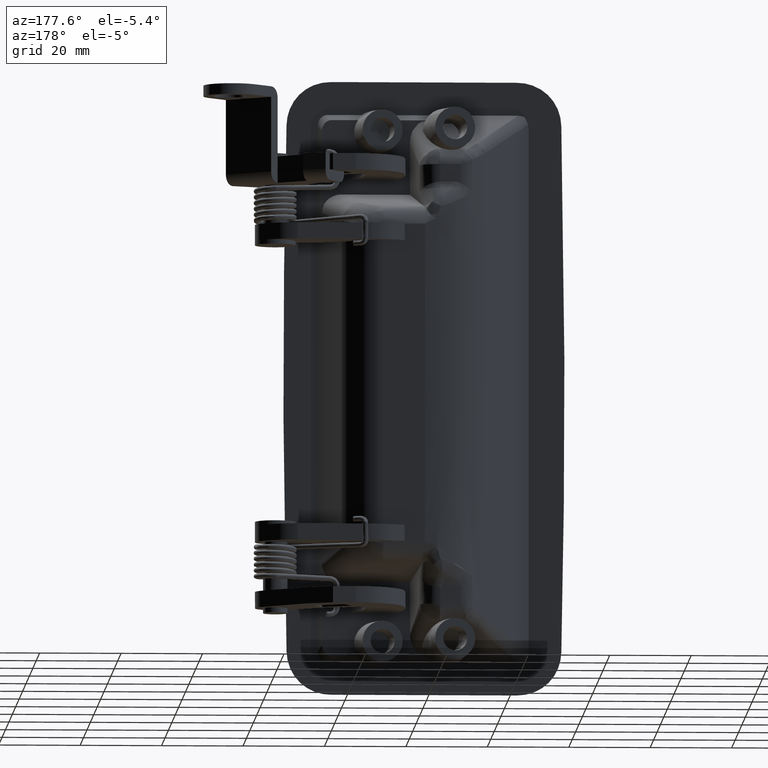
[diagram: clean part render]
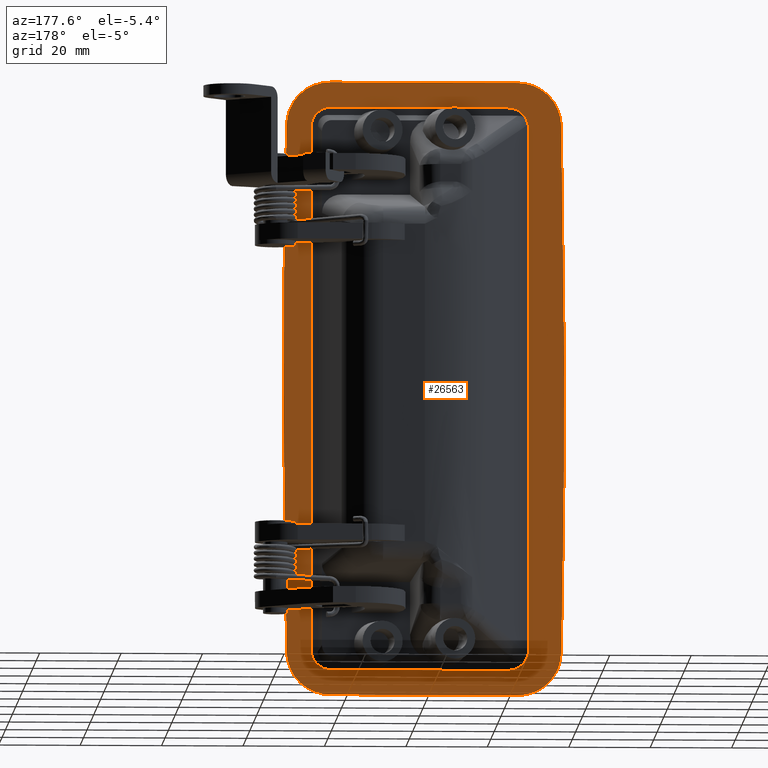
[diagram: same view with one face highlighted and labeled with its STEP entity id]
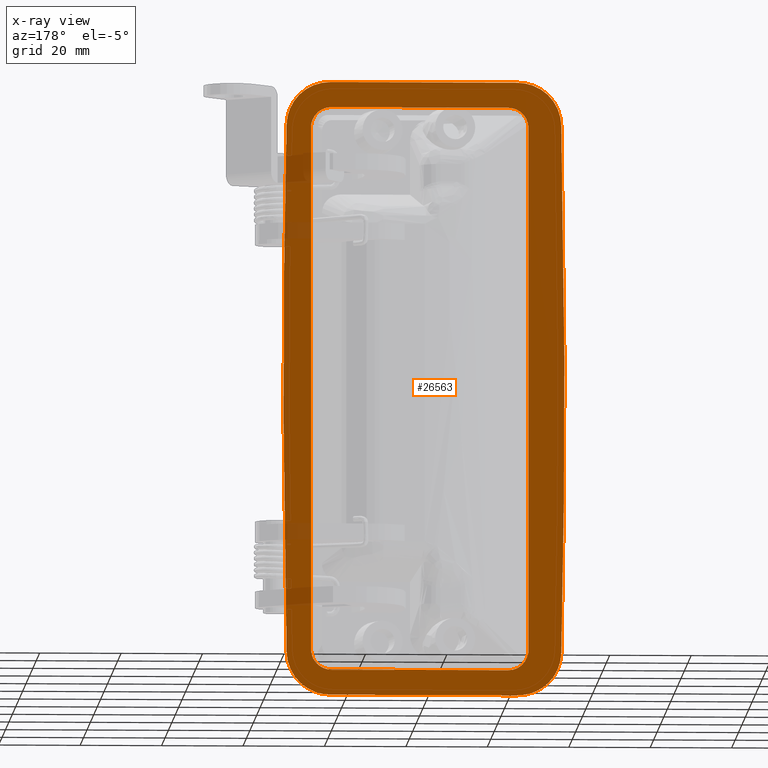
[diagram: x-ray of the same camera — body ghosted, the highlighted face saturated]
A machine part, auxiliary view. The second image highlights one B-rep face of the part: STEP entity #26563.
The next image is the same camera in x-ray: the body ghosted, the highlighted face saturated — about 4% of this face is hidden behind the body in this view.
In plain terms, the highlighted face is a freeform B-spline surface patch.
Its self-contained STEP definition (entity closure, byte-faithful):
#26063=CARTESIAN_POINT('',(-22.829069437363401,5.814100009536743,-75.500000000000000));
#26064=VERTEX_POINT('',#26063);
#26065=CARTESIAN_POINT('',(-33.745211957346513,5.814100009536743,-64.835173267199096));
#26066=VERTEX_POINT('',#26065);
#26067=CARTESIAN_POINT('',(-22.829069437363401,5.814100009536743,-75.500000000000000));
#26068=CARTESIAN_POINT('',(-23.541526736571829,5.814100009536743,-75.499999999999886));
#26069=CARTESIAN_POINT('',(-24.243614192699340,5.814100009536744,-75.436763561993899));
#26070=CARTESIAN_POINT('',(-25.281017998406650,5.814100009536742,-75.246001629750779));
#26071=CARTESIAN_POINT('',(-25.624183192660340,5.814100009536743,-75.166339249329894));
#26072=CARTESIAN_POINT('',(-26.134807661815628,5.814100009536741,-75.021701208503629));
#26073=CARTESIAN_POINT('',(-26.304327493175279,5.814100009536742,-74.969291046891144));
#26074=CARTESIAN_POINT('',(-26.557542501887198,5.814100009536743,-74.884182913623803));
#26075=CARTESIAN_POINT('',(-26.641682429191299,5.814100009536741,-74.854756852605888));
#26076=CARTESIAN_POINT('',(-26.808685075642568,5.814100009536741,-74.794056343016194));
#26077=CARTESIAN_POINT('',(-26.891655022079551,5.814100009536742,-74.762746354508081));
#26078=CARTESIAN_POINT('',(-27.303863256752521,5.814100009536741,-74.601425533242889));
#26079=CARTESIAN_POINT('',(-27.946523310175579,5.814100009536744,-74.312837225901575));
#26080=CARTESIAN_POINT('',(-28.555694174505270,5.814100009536740,-73.963763205805478));
#26081=CARTESIAN_POINT('',(-29.147828195811890,5.814100009536744,-73.583918491606681));
#26082=CARTESIAN_POINT('',(-29.435379014570579,5.814100009536745,-73.378614814426157));
#26083=CARTESIAN_POINT('',(-29.783703341449289,5.814100009536740,-73.101911572711231));
#26084=CARTESIAN_POINT('',(-29.852890343826221,5.814100009536741,-73.045495609401243));
#26085=CARTESIAN_POINT('',(-29.989371170329701,5.814100009536740,-72.931272442262141));
#26086=CARTESIAN_POINT('',(-30.191484141327312,5.814100009536742,-72.757676017311837));
#26087=CARTESIAN_POINT('',(-30.385858674865631,5.814100009536742,-72.577369461505270));
#26088=CARTESIAN_POINT('',(-30.764453427964948,5.814100009536741,-72.207951371380332));
#26089=CARTESIAN_POINT('',(-31.242210462316120,5.814100009536743,-71.691950568236024));
#26090=CARTESIAN_POINT('',(-31.666573069511461,5.814100009536741,-71.129650548344500));
#26091=CARTESIAN_POINT('',(-31.964566707418101,5.814100009536742,-70.690341859122313));
#26092=CARTESIAN_POINT('',(-32.060512924101687,5.814100009536740,-70.540970441767129));
#26093=CARTESIAN_POINT('',(-32.245526370740549,5.814100009536742,-70.236262720560148));
#26094=CARTESIAN_POINT('',(-32.333956421947882,5.814100009536745,-70.081962021945827));
#26095=CARTESIAN_POINT('',(-32.586675286871369,5.814100009536741,-69.614504211352298));
#26096=CARTESIAN_POINT('',(-32.738720456295447,5.814100009536744,-69.296307782639587));
#26097=CARTESIAN_POINT('',(-33.011129845379898,5.814100009536741,-68.647272890614474));
#26098=CARTESIAN_POINT('',(-33.131490832009582,5.814100009536743,-68.316433137186607));
#26099=CARTESIAN_POINT('',(-33.288542611881041,5.814100009536742,-67.810800126408338));
#26100=CARTESIAN_POINT('',(-33.336972184497917,5.814100009536742,-67.640691136926336));
#26101=CARTESIAN_POINT('',(-33.403715286822973,5.814100009536745,-67.383172802527511));
#26102=CARTESIAN_POINT('',(-33.424979070037253,5.814100009536744,-67.296940733139934));
#26103=CARTESIAN_POINT('',(-33.465530961226413,5.814100009536742,-67.123688216651402));
#26104=CARTESIAN_POINT('',(-33.484826326115709,5.814100009536743,-67.036622867929211));
#26105=CARTESIAN_POINT('',(-33.575990347305783,5.814100009536743,-66.601071084912505));
#26106=CARTESIAN_POINT('',(-33.632278932575879,5.814100009536745,-66.250612228585297));
#26107=CARTESIAN_POINT('',(-33.712743083779607,5.814100009536744,-65.545801756235406));
#26108=CARTESIAN_POINT('',(-33.736915544270090,5.814100009536745,-65.191449763769128));
#26109=CARTESIAN_POINT('',(-33.745211957347102,5.814100009536743,-64.835173267199210));
#26110=B_SPLINE_CURVE_WITH_KNOTS('',3,(#26067,#26068,#26069,#26070,#26071,#26072,#26073,#26074,#26075,#26076,#26077,#26078,#26079,#26080,#26081,#26082,#26083,#26084,#26085,#26086,#26087,#26088,#26089,#26090,#26091,#26092,#26093,#26094,#26095,#26096,#26097,#26098,#26099,#26100,#26101,#26102,#26103,#26104,#26105,#26106,#26107,#26108,#26109),.UNSPECIFIED.,.F.,.U.,(4,2,2,2,2,2,1,2,2,2,1,2,1,2,2,2,2,2,2,2,2,2,4),(0.0,0.124999999999989,0.187499999999984,0.218749999999982,0.234374999999981,0.249999999999980,0.312499999999976,0.374999999999971,0.437499999999967,0.453124999999967,0.468749999999967,0.499999999999970,0.562499999999975,0.624999999999979,0.656249999999983,0.687499999999987,0.749999999999992,0.812499999999997,0.843750000000000,0.859375000000001,0.875000000000002,0.937500000000001,1.0),.UNSPECIFIED.);
#26111=EDGE_CURVE('',#26064,#26066,#26110,.T.);
#26142=CARTESIAN_POINT('',(22.829069437363401,5.814100009536743,-75.500000000000000));
#26143=VERTEX_POINT('',#26142);
#26149=CARTESIAN_POINT('',(33.745211957346513,5.814100009536743,-64.835173267199295));
#26150=VERTEX_POINT('',#26149);
#26151=CARTESIAN_POINT('',(33.745211957346513,5.814100009536743,-64.835173267199295));
#26152=CARTESIAN_POINT('',(33.728625849427701,5.814100009537252,-65.547437756251497));
#26153=CARTESIAN_POINT('',(33.649058501073817,5.814100009536742,-66.247862235484220));
#26154=CARTESIAN_POINT('',(33.434190454967663,5.814100009536743,-67.280542456663767));
#26155=CARTESIAN_POINT('',(33.346558094406269,5.814100009536741,-67.621759495284621));
#26156=CARTESIAN_POINT('',(33.190067626542103,5.814100009536740,-68.128877355180791));
#26157=CARTESIAN_POINT('',(33.133723773063970,5.814100009536741,-68.297130764101979));
#26158=CARTESIAN_POINT('',(33.042741603505981,5.814100009536743,-68.548295243863890));
#26159=CARTESIAN_POINT('',(33.011364057315980,5.814100009536743,-68.631726924596762));
#26160=CARTESIAN_POINT('',(32.946790779152501,5.814100009536743,-68.797270494597726));
#26161=CARTESIAN_POINT('',(32.913557036877222,5.814100009536742,-68.879488704248317));
#26162=CARTESIAN_POINT('',(32.742680238744292,5.814100009536742,-69.287827907938308));
#26163=CARTESIAN_POINT('',(32.439203474865273,5.814100009536743,-69.923592652310035));
#26164=CARTESIAN_POINT('',(32.076037208192133,5.814100009536742,-70.524469289851808));
#26165=CARTESIAN_POINT('',(31.682505257407449,5.814100009536742,-71.107597392363857));
#26166=CARTESIAN_POINT('',(31.470560413589698,5.814100009536744,-71.390289498664799));
#26167=CARTESIAN_POINT('',(31.185819849086059,5.814100009536745,-71.732076108360118));
#26168=CARTESIAN_POINT('',(31.127807948515450,5.814100009536742,-71.799930524289096));
#26169=CARTESIAN_POINT('',(31.010437626997572,5.814100009536743,-71.933714023560555));
#26170=CARTESIAN_POINT('',(30.832181813545059,5.814100009536742,-72.131729087308400));
#26171=CARTESIAN_POINT('',(30.647397856619151,5.814100009536742,-72.321851670788718));
#26172=CARTESIAN_POINT('',(30.269263738902438,5.814100009536742,-72.691740356577228));
#26173=CARTESIAN_POINT('',(29.742277301360499,5.814100009536743,-73.157351023621402));
#26174=CARTESIAN_POINT('',(29.170246921626759,5.814100009536742,-73.568503876377520));
#26175=CARTESIAN_POINT('',(28.724117104482360,5.814100009536745,-73.856186232265955));
#26176=CARTESIAN_POINT('',(28.572551542872830,5.814100009536744,-73.948627922987114));
#26177=CARTESIAN_POINT('',(28.263617215128590,5.814100009536745,-74.126495270331816));
#26178=CARTESIAN_POINT('',(28.107299649118460,5.814100009536744,-74.211307474835777));
#26179=CARTESIAN_POINT('',(27.634083721226361,5.814100009536744,-74.453070975462538));
#26180=CARTESIAN_POINT('',(27.312432879523602,5.814100009536743,-74.597664374001383));
#26181=CARTESIAN_POINT('',(26.657230076272949,5.814100009536743,-74.854884578218090));
#26182=CARTESIAN_POINT('',(26.323676900026729,5.814100009536743,-74.967508121197298));
#26183=CARTESIAN_POINT('',(25.814523148475690,5.814100009536742,-75.112742068961211));
#26184=CARTESIAN_POINT('',(25.643332286653528,5.814100009536741,-75.157197032692267));
#26185=CARTESIAN_POINT('',(25.384329176366560,5.814100009536741,-75.217925071887734));
#26186=CARTESIAN_POINT('',(25.297625195912399,5.814100009536742,-75.237174972452422));
#26187=CARTESIAN_POINT('',(25.123475071035600,5.814100009536743,-75.273681309628415));
#26188=CARTESIAN_POINT('',(25.035984039755270,5.814100009536742,-75.290943920519709));
#26189=CARTESIAN_POINT('',(24.598427940703889,5.814100009536742,-75.371940444624386));
#26190=CARTESIAN_POINT('',(24.246753642194989,5.814100009536743,-75.420052982527707));
#26191=CARTESIAN_POINT('',(23.540261017391710,5.814100009536745,-75.484084317355794));
#26192=CARTESIAN_POINT('',(23.185442386957920,5.814100009536744,-75.499999999999957));
#26193=CARTESIAN_POINT('',(22.829069437363401,5.814100009536743,-75.500000000000000));
#26194=B_SPLINE_CURVE_WITH_KNOTS('',3,(#26151,#26152,#26153,#26154,#26155,#26156,#26157,#26158,#26159,#26160,#26161,#26162,#26163,#26164,#26165,#26166,#26167,#26168,#26169,#26170,#26171,#26172,#26173,#26174,#26175,#26176,#26177,#26178,#26179,#26180,#26181,#26182,#26183,#26184,#26185,#26186,#26187,#26188,#26189,#26190,#26191,#26192,#26193),.UNSPECIFIED.,.F.,.U.,(4,2,2,2,2,2,1,2,2,2,1,2,1,2,2,2,2,2,2,2,2,2,4),(0.0,0.124999999999998,0.187499999999999,0.218750000000000,0.234375000000001,0.250000000000001,0.312500000000000,0.374999999999998,0.437499999999997,0.453124999999997,0.468749999999998,0.499999999999998,0.562499999999998,0.624999999999998,0.656249999999999,0.687499999999999,0.749999999999998,0.812499999999998,0.843749999999997,0.859374999999997,0.874999999999997,0.937499999999999,1.0),.UNSPECIFIED.);
#26195=EDGE_CURVE('',#26150,#26143,#26194,.T.);
#26220=CARTESIAN_POINT('',(-22.829069437363401,5.814100009536743,75.500000000000000));
#26221=VERTEX_POINT('',#26220);
#26227=CARTESIAN_POINT('',(-33.745211957346513,5.814100009536743,64.835173267199394));
#26228=VERTEX_POINT('',#26227);
#26229=CARTESIAN_POINT('',(-33.745211957346513,5.814100009536743,64.835173267199394));
#26230=CARTESIAN_POINT('',(-33.728625849427509,5.814100009536743,65.547437756251597));
#26231=CARTESIAN_POINT('',(-33.649058501074030,5.814100009536744,66.247862235484362));
#26232=CARTESIAN_POINT('',(-33.434190454967890,5.814100009536740,67.280542456663895));
#26233=CARTESIAN_POINT('',(-33.346558094406269,5.814100009536743,67.621759495284735));
#26234=CARTESIAN_POINT('',(-33.190067626542110,5.814100009536743,68.128877355180919));
#26235=CARTESIAN_POINT('',(-33.133723773063977,5.814100009536743,68.297130764102093));
#26236=CARTESIAN_POINT('',(-33.042741603506009,5.814100009536744,68.548295243864047));
#26237=CARTESIAN_POINT('',(-33.011364057315987,5.814100009536744,68.631726924596876));
#26238=CARTESIAN_POINT('',(-32.946790779152522,5.814100009536743,68.797270494597839));
#26239=CARTESIAN_POINT('',(-32.913557036877393,5.814100009536742,68.879488704248516));
#26240=CARTESIAN_POINT('',(-32.742680238744477,5.814100009536742,69.287827907938478));
#26241=CARTESIAN_POINT('',(-32.439203474865877,5.814100009536743,69.923592652310461));
#26242=CARTESIAN_POINT('',(-32.076037208192147,5.814100009536742,70.524469289851908));
#26243=CARTESIAN_POINT('',(-31.682505257407460,5.814100009536740,71.107597392363957));
#26244=CARTESIAN_POINT('',(-31.470560413589830,5.814100009536741,71.390289498665027));
#26245=CARTESIAN_POINT('',(-31.185819849086190,5.814100009536740,71.732076108360346));
#26246=CARTESIAN_POINT('',(-31.127807948515560,5.814100009536742,71.799930524289309));
#26247=CARTESIAN_POINT('',(-31.010437626997678,5.814100009536742,71.933714023560796));
#26248=CARTESIAN_POINT('',(-30.832181813545340,5.814100009536744,72.131729087308827));
#26249=CARTESIAN_POINT('',(-30.647397856619101,5.814100009536741,72.321851670788760));
#26250=CARTESIAN_POINT('',(-30.269263738902410,5.814100009536742,72.691740356577341));
#26251=CARTESIAN_POINT('',(-29.742277301360591,5.814100009536744,73.157351023621672));
#26252=CARTESIAN_POINT('',(-29.170246921626859,5.814100009536742,73.568503876377790));
#26253=CARTESIAN_POINT('',(-28.724117104482449,5.814100009536745,73.856186232266239));
#26254=CARTESIAN_POINT('',(-28.572551542872819,5.814100009536744,73.948627922987271));
#26255=CARTESIAN_POINT('',(-28.263617215128590,5.814100009536743,74.126495270331930));
#26256=CARTESIAN_POINT('',(-28.107299649118421,5.814100009536741,74.211307474835820));
#26257=CARTESIAN_POINT('',(-27.634083721226339,5.814100009536741,74.453070975462566));
#26258=CARTESIAN_POINT('',(-27.312432879523602,5.814100009536742,74.597664374001525));
#26259=CARTESIAN_POINT('',(-26.657230076272949,5.814100009536744,74.854884578218233));
#26260=CARTESIAN_POINT('',(-26.323676900026790,5.814100009536744,74.967508121197611));
#26261=CARTESIAN_POINT('',(-25.814523148475740,5.814100009536742,75.112742068961509));
#26262=CARTESIAN_POINT('',(-25.643332286653550,5.814100009536744,75.157197032692522));
#26263=CARTESIAN_POINT('',(-25.384329176366581,5.814100009536743,75.217925071887947));
#26264=CARTESIAN_POINT('',(-25.297625195912438,5.814100009536744,75.237174972452735));
#26265=CARTESIAN_POINT('',(-25.123475071035621,5.814100009536744,75.273681309628699));
#26266=CARTESIAN_POINT('',(-25.035984039755299,5.814100009536740,75.290943920520036));
#26267=CARTESIAN_POINT('',(-24.598427940703921,5.814100009536744,75.371940444624727));
#26268=CARTESIAN_POINT('',(-24.246753642195021,5.814100009536744,75.420052982528020));
#26269=CARTESIAN_POINT('',(-23.540261017391732,5.814100009536742,75.484084317356093));
#26270=CARTESIAN_POINT('',(-23.185442386957860,5.814100009536745,75.499999999999943));
#26271=CARTESIAN_POINT('',(-22.829069437363341,5.814100009536743,75.500000000000000));
#26272=B_SPLINE_CURVE_WITH_KNOTS('',3,(#26229,#26230,#26231,#26232,#26233,#26234,#26235,#26236,#26237,#26238,#26239,#26240,#26241,#26242,#26243,#26244,#26245,#26246,#26247,#26248,#26249,#26250,#26251,#26252,#26253,#26254,#26255,#26256,#26257,#26258,#26259,#26260,#26261,#26262,#26263,#26264,#26265,#26266,#26267,#26268,#26269,#26270,#26271),.UNSPECIFIED.,.F.,.U.,(4,2,2,2,2,2,1,2,2,2,1,2,1,2,2,2,2,2,2,2,2,2,4),(0.0,0.125000000000001,0.187500000000002,0.218750000000002,0.234375000000002,0.250000000000002,0.312500000000000,0.374999999999997,0.437499999999995,0.453124999999995,0.468749999999995,0.499999999999994,0.562499999999995,0.624999999999995,0.656249999999996,0.687499999999996,0.749999999999996,0.812499999999997,0.843749999999997,0.859374999999998,0.874999999999998,0.937499999999999,1.0),.UNSPECIFIED.);
#26273=EDGE_CURVE('',#26228,#26221,#26272,.T.);
#26297=CARTESIAN_POINT('',(22.829069437363302,5.814100009536743,75.500000000000000));
#26298=VERTEX_POINT('',#26297);
#26299=CARTESIAN_POINT('',(33.745211957346513,5.814100009536743,64.835173267199394));
#26300=VERTEX_POINT('',#26299);
#26301=CARTESIAN_POINT('',(22.829069437363351,5.814100009536743,75.500000000000000));
#26302=CARTESIAN_POINT('',(23.541526736571772,5.814100009536743,75.499999999999886));
#26303=CARTESIAN_POINT('',(24.243614192699368,5.814100009536744,75.436763561994198));
#26304=CARTESIAN_POINT('',(25.281017998406661,5.814100009536743,75.246001629751063));
#26305=CARTESIAN_POINT('',(25.624183192660372,5.814100009536744,75.166339249330306));
#26306=CARTESIAN_POINT('',(26.134807661815671,5.814100009536743,75.021701208504041));
#26307=CARTESIAN_POINT('',(26.304327493175279,5.814100009536743,74.969291046891357));
#26308=CARTESIAN_POINT('',(26.557542501887198,5.814100009536742,74.884182913624002));
#26309=CARTESIAN_POINT('',(26.641682429191320,5.814100009536741,74.854756852606144));
#26310=CARTESIAN_POINT('',(26.808685075642590,5.814100009536742,74.794056343016464));
#26311=CARTESIAN_POINT('',(26.891655022079551,5.814100009536743,74.762746354508323));
#26312=CARTESIAN_POINT('',(27.303863256752511,5.814100009536744,74.601425533243130));
#26313=CARTESIAN_POINT('',(27.946523310175710,5.814100009536743,74.312837225902015));
#26314=CARTESIAN_POINT('',(28.555694174505291,5.814100009536741,73.963763205805719));
#26315=CARTESIAN_POINT('',(29.147828195811901,5.814100009536742,73.583918491606909));
#26316=CARTESIAN_POINT('',(29.435379014570689,5.814100009536743,73.378614814426570));
#26317=CARTESIAN_POINT('',(29.783703341449421,5.814100009536744,73.101911572711643));
#26318=CARTESIAN_POINT('',(29.852890343826271,5.814100009536742,73.045495609401556));
#26319=CARTESIAN_POINT('',(29.989371170329761,5.814100009536743,72.931272442262440));
#26320=CARTESIAN_POINT('',(30.191484141327450,5.814100009536742,72.757676017312235));
#26321=CARTESIAN_POINT('',(30.385858674865649,5.814100009536742,72.577369461505526));
#26322=CARTESIAN_POINT('',(30.764453427964959,5.814100009536744,72.207951371380602));
#26323=CARTESIAN_POINT('',(31.242210462316152,5.814100009536744,71.691950568236351));
#26324=CARTESIAN_POINT('',(31.666573069511450,5.814100009536744,71.129650548344785));
#26325=CARTESIAN_POINT('',(31.964566707418079,5.814100009536742,70.690341859122583));
#26326=CARTESIAN_POINT('',(32.060512924101609,5.814100009536742,70.540970441767371));
#26327=CARTESIAN_POINT('',(32.245526370740471,5.814100009536742,70.236262720560390));
#26328=CARTESIAN_POINT('',(32.333956421947967,5.814100009536744,70.081962021946140));
#26329=CARTESIAN_POINT('',(32.586675286871490,5.814100009536741,69.614504211352639));
#26330=CARTESIAN_POINT('',(32.738720456295248,5.814100009536740,69.296307782639801));
#26331=CARTESIAN_POINT('',(33.011129845379692,5.814100009536742,68.647272890614730));
#26332=CARTESIAN_POINT('',(33.131490832009590,5.814100009536744,68.316433137186905));
#26333=CARTESIAN_POINT('',(33.288542611881063,5.814100009536743,67.810800126408651));
#26334=CARTESIAN_POINT('',(33.336972184497618,5.814100009536744,67.640691136926506));
#26335=CARTESIAN_POINT('',(33.403715286822667,5.814100009536744,67.383172802527667));
#26336=CARTESIAN_POINT('',(33.424979070037097,5.814100009536744,67.296940733140190));
#26337=CARTESIAN_POINT('',(33.465530961226271,5.814100009536742,67.123688216651672));
#26338=CARTESIAN_POINT('',(33.484826326115773,5.814100009536743,67.036622867929552));
#26339=CARTESIAN_POINT('',(33.575990347305847,5.814100009536742,66.601071084912874));
#26340=CARTESIAN_POINT('',(33.632278932575971,5.814100009536744,66.250612228585624));
#26341=CARTESIAN_POINT('',(33.712743083779678,5.814100009536740,65.545801756235733));
#26342=CARTESIAN_POINT('',(33.736915544270367,5.814100009536743,65.191449763769427));
#26343=CARTESIAN_POINT('',(33.745211957347401,5.814100009536743,64.835173267199494));
#26344=B_SPLINE_CURVE_WITH_KNOTS('',3,(#26301,#26302,#26303,#26304,#26305,#26306,#26307,#26308,#26309,#26310,#26311,#26312,#26313,#26314,#26315,#26316,#26317,#26318,#26319,#26320,#26321,#26322,#26323,#26324,#26325,#26326,#26327,#26328,#26329,#26330,#26331,#26332,#26333,#26334,#26335,#26336,#26337,#26338,#26339,#26340,#26341,#26342,#26343),.UNSPECIFIED.,.F.,.U.,(4,2,2,2,2,2,1,2,2,2,1,2,1,2,2,2,2,2,2,2,2,2,4),(0.0,0.124999999999992,0.187499999999988,0.218749999999986,0.234374999999985,0.249999999999985,0.312499999999978,0.374999999999971,0.437499999999964,0.453124999999964,0.468749999999963,0.499999999999963,0.562499999999966,0.624999999999967,0.656249999999969,0.687499999999971,0.749999999999976,0.812499999999980,0.843749999999983,0.859374999999984,0.874999999999985,0.937499999999992,1.0),.UNSPECIFIED.);
#26345=EDGE_CURVE('',#26298,#26300,#26344,.T.);
#26375=CARTESIAN_POINT('',(33.745211957346513,5.814100009536743,-64.835173267199295));
#26376=CARTESIAN_POINT('',(35.254992660043172,5.814100009536743,-1.518320E-012));
#26377=CARTESIAN_POINT('',(33.745211957346932,5.814100009536743,64.835173267199437));
#26385=(BOUNDED_CURVE()B_SPLINE_CURVE(2,(#26375,#26376,#26377),.UNSPECIFIED.,.F.,.U.)CURVE()GEOMETRIC_REPRESENTATION_ITEM()QUASI_UNIFORM_CURVE()RATIONAL_B_SPLINE_CURVE((1.0,0.999728980954164,1.0))REPRESENTATION_ITEM(''));
#26386=EDGE_CURVE('',#26150,#26300,#26385,.T.);
#26410=CARTESIAN_POINT('',(-33.745211957346513,5.814100009536743,64.835173267199394));
#26411=CARTESIAN_POINT('',(-35.254992660043172,5.814100009536743,-3.968142E-013));
#26412=CARTESIAN_POINT('',(-33.745211957346932,5.814100009536743,-64.835173267199167));
#26420=(BOUNDED_CURVE()B_SPLINE_CURVE(2,(#26410,#26411,#26412),.UNSPECIFIED.,.F.,.U.)CURVE()GEOMETRIC_REPRESENTATION_ITEM()QUASI_UNIFORM_CURVE()RATIONAL_B_SPLINE_CURVE((1.0,0.999728980954164,1.0))REPRESENTATION_ITEM(''));
#26421=EDGE_CURVE('',#26228,#26066,#26420,.T.);
#26432=CARTESIAN_POINT('',(22.829069437363401,5.814100009536743,-75.500000000000000));
#26433=CARTESIAN_POINT('',(-22.829069437363401,5.814100009536743,-75.500000000000000));
#26434=QUASI_UNIFORM_CURVE('',1,(#26432,#26433),.UNSPECIFIED.,.F.,.U.);
#26435=EDGE_CURVE('',#26143,#26064,#26434,.T.);
#26450=CARTESIAN_POINT('',(22.829069437363302,5.814100009536743,75.500000000000000));
#26451=CARTESIAN_POINT('',(-22.829069437363401,5.814100009536743,75.500000000000000));
#26452=QUASI_UNIFORM_CURVE('',1,(#26450,#26451),.UNSPECIFIED.,.F.,.U.);
#26453=EDGE_CURVE('',#26298,#26221,#26452,.T.);
#26459=CARTESIAN_POINT('',(37.946549866264370,5.814100009536743,-83.042449707332707));
#26460=CARTESIAN_POINT('',(37.946549866264370,5.814100009536743,83.042453757468309));
#26461=CARTESIAN_POINT('',(-37.946551716988580,5.814100009536743,-83.042449707332707));
#26462=CARTESIAN_POINT('',(-37.946551716988580,5.814100009536743,83.042453757468309));
#26463=B_SPLINE_SURFACE_WITH_KNOTS('',1,1,((#26459,#26461),(#26460,#26462)),.UNSPECIFIED.,.F.,.F.,.U.,(2,2),(2,2),(0.0,166.084903464800990),(0.0,75.893101583252957),.UNSPECIFIED.);
#26464=ORIENTED_EDGE('',*,*,#26453,.F.);
#26465=ORIENTED_EDGE('',*,*,#26345,.T.);
#26466=ORIENTED_EDGE('',*,*,#26386,.F.);
#26467=ORIENTED_EDGE('',*,*,#26195,.T.);
#26468=ORIENTED_EDGE('',*,*,#26435,.T.);
#26469=ORIENTED_EDGE('',*,*,#26111,.T.);
#26470=ORIENTED_EDGE('',*,*,#26421,.F.);
#26471=ORIENTED_EDGE('',*,*,#26273,.T.);
#26472=EDGE_LOOP('',(#26464,#26465,#26466,#26467,#26468,#26469,#26470,#26471));
#26473=FACE_OUTER_BOUND('',#26472,.T.);
#26474=CARTESIAN_POINT('',(22.736000000000001,5.814100009536743,69.319699999999997));
#26475=VERTEX_POINT('',#26474);
#26476=CARTESIAN_POINT('',(27.736000000000001,5.814100009536743,64.319699999999997));
#26477=VERTEX_POINT('',#26476);
#26478=CARTESIAN_POINT('',(22.736000000000001,5.814100009536743,69.319699999999997));
#26479=CARTESIAN_POINT('',(23.349674017937382,5.814100009536906,69.320296634715646));
#26480=CARTESIAN_POINT('',(24.290114911363808,5.814100009536439,69.144216094416905));
#26481=CARTESIAN_POINT('',(25.354798291637710,5.814100009536988,68.608118037678864));
#26482=CARTESIAN_POINT('',(26.145542746327600,5.814100009536595,68.021765426911529));
#26483=CARTESIAN_POINT('',(26.809790646695578,5.814100009536744,67.288870990564121));
#26484=CARTESIAN_POINT('',(27.336527992853000,5.814100009536817,66.358976692834304));
#26485=CARTESIAN_POINT('',(27.658841204613609,5.814100009536931,65.383222033303127));
#26486=CARTESIAN_POINT('',(27.736066206667680,5.814100009536215,64.687847967160664));
#26487=CARTESIAN_POINT('',(27.736000000000001,5.814100009536743,64.319699999999997));
#26488=B_SPLINE_CURVE_WITH_KNOTS('',3,(#26478,#26479,#26480,#26481,#26482,#26483,#26484,#26485,#26486,#26487),.UNSPECIFIED.,.F.,.U.,(4,1,1,1,1,1,1,4),(0.000245064915850,1.841008559671132,2.822776706835592,3.559080783401385,4.786192668119924,5.767956611579884,6.749724774263575,7.854153324014071),.UNSPECIFIED.);
#26489=EDGE_CURVE('',#26475,#26477,#26488,.T.);
#26490=ORIENTED_EDGE('',*,*,#26489,.F.);
#26491=CARTESIAN_POINT('',(-20.672463871690852,5.814100009536743,69.319699999999997));
#26492=VERTEX_POINT('',#26491);
#26493=CARTESIAN_POINT('',(22.736000000000001,5.814100009536743,69.319699999999997));
#26494=CARTESIAN_POINT('',(-20.672463871690852,5.814100009536743,69.319699999999997));
#26495=QUASI_UNIFORM_CURVE('',1,(#26493,#26494),.UNSPECIFIED.,.F.,.U.);
#26496=EDGE_CURVE('',#26475,#26492,#26495,.T.);
#26497=ORIENTED_EDGE('',*,*,#26496,.T.);
#26498=CARTESIAN_POINT('',(-25.672463871690852,5.814100009536743,64.319699999999997));
#26499=VERTEX_POINT('',#26498);
#26500=CARTESIAN_POINT('',(-25.672463871690852,5.814100009536743,64.319699999999997));
#26501=CARTESIAN_POINT('',(-25.672621069805651,5.814100009536692,64.769670863989191));
#26502=CARTESIAN_POINT('',(-25.566808961589850,5.814100009536886,65.546817763755413));
#26503=CARTESIAN_POINT('',(-25.196942019053569,5.814100009536646,66.505547673812941));
#26504=CARTESIAN_POINT('',(-24.690872029533750,5.814100009536619,67.349933046386965));
#26505=CARTESIAN_POINT('',(-23.916020009188522,5.814100009536928,68.205136734466819));
#26506=CARTESIAN_POINT('',(-22.867926166933479,5.814100009536659,68.868787830136498));
#26507=CARTESIAN_POINT('',(-21.735980413281499,5.814100009536737,69.242527024918175));
#26508=CARTESIAN_POINT('',(-21.040610766919990,5.814100009536757,69.319764523696520));
#26509=CARTESIAN_POINT('',(-20.672463871690852,5.814100009536743,69.319699999999997));
#26510=B_SPLINE_CURVE_WITH_KNOTS('',3,(#26500,#26501,#26502,#26503,#26504,#26505,#26506,#26507,#26508,#26509),.UNSPECIFIED.,.F.,.U.,(4,1,1,1,1,1,1,4),(0.000245064906159,1.350133456882825,2.331891956513891,3.068216715152015,4.295329421427408,5.767956611577424,6.749724774262509,7.854153324014116),.UNSPECIFIED.);
#26511=EDGE_CURVE('',#26499,#26492,#26510,.T.);
#26512=ORIENTED_EDGE('',*,*,#26511,.F.);
#26513=CARTESIAN_POINT('',(-25.672463871690852,5.814100009536743,-64.319699999999997));
#26514=VERTEX_POINT('',#26513);
#26515=CARTESIAN_POINT('',(-25.672463871690852,5.814100009536743,64.319699999999997));
#26516=CARTESIAN_POINT('',(-25.672463871690852,5.814100009536743,-64.319699999999997));
#26517=QUASI_UNIFORM_CURVE('',1,(#26515,#26516),.UNSPECIFIED.,.F.,.U.);
#26518=EDGE_CURVE('',#26499,#26514,#26517,.T.);
#26519=ORIENTED_EDGE('',*,*,#26518,.T.);
#26520=CARTESIAN_POINT('',(-20.672463871690852,5.814100009536743,-69.319699999999997));
#26521=VERTEX_POINT('',#26520);
#26522=CARTESIAN_POINT('',(-20.672463871690852,5.814100009536743,-69.319699999999997));
#26523=CARTESIAN_POINT('',(-21.286137757260640,5.814100009536841,-69.320294887040347));
#26524=CARTESIAN_POINT('',(-22.226580202825140,5.814100009536552,-69.144220000961383));
#26525=CARTESIAN_POINT('',(-23.291254151384301,5.814100009536898,-68.608108990485533));
#26526=CARTESIAN_POINT('',(-24.114996301715401,5.814100009536593,-67.997368669530076));
#26527=CARTESIAN_POINT('',(-24.798523184992408,5.814100009536758,-67.224269800878190));
#26528=CARTESIAN_POINT('',(-25.476760885353318,5.814100009536948,-65.955465437779651));
#26529=CARTESIAN_POINT('',(-25.673242535574399,5.814100009536515,-64.974342959337420));
#26530=CARTESIAN_POINT('',(-25.672463871690852,5.814100009536743,-64.319699999999997));
#26531=B_SPLINE_CURVE_WITH_KNOTS('',3,(#26522,#26523,#26524,#26525,#26526,#26527,#26528,#26529,#26530),.UNSPECIFIED.,.F.,.U.,(4,1,1,1,1,1,4),(0.000245064917353,1.841008559671616,2.822776706835676,3.559080783401488,4.908911592411291,5.890678003719453,7.854153324014072),.UNSPECIFIED.);
#26532=EDGE_CURVE('',#26521,#26514,#26531,.T.);
#26533=ORIENTED_EDGE('',*,*,#26532,.F.);
#26534=CARTESIAN_POINT('',(22.736000000000001,5.814100009536743,-69.319699999999997));
#26535=VERTEX_POINT('',#26534);
#26536=CARTESIAN_POINT('',(-20.672463871690852,5.814100009536743,-69.319699999999997));
#26537=CARTESIAN_POINT('',(22.736000000000001,5.814100009536743,-69.319699999999997));
#26538=QUASI_UNIFORM_CURVE('',1,(#26536,#26537),.UNSPECIFIED.,.F.,.U.);
#26539=EDGE_CURVE('',#26521,#26535,#26538,.T.);
#26540=ORIENTED_EDGE('',*,*,#26539,.T.);
#26541=CARTESIAN_POINT('',(27.736000000000001,5.814100009536743,-64.319699999999997));
#26542=VERTEX_POINT('',#26541);
#26543=CARTESIAN_POINT('',(27.736000000000001,5.814100009536743,-64.319699999999997));
#26544=CARTESIAN_POINT('',(27.736594948540422,5.814100009536756,-64.933374419808217));
#26545=CARTESIAN_POINT('',(27.560517732249352,5.814100009536722,-65.873813683809772));
#26546=CARTESIAN_POINT('',(27.024421358881352,5.814100009536760,-66.938503975395250));
#26547=CARTESIAN_POINT('',(26.462473218670851,5.814100009536730,-67.696268087719474));
#26548=CARTESIAN_POINT('',(25.768980428789181,5.814100009536752,-68.340506042158864));
#26549=CARTESIAN_POINT('',(24.852317568353818,5.814100009536737,-68.889947395109004));
#26550=CARTESIAN_POINT('',(23.840439473094388,5.814100009536753,-69.238030456339857));
#26551=CARTESIAN_POINT('',(23.104144908761501,5.814100009536741,-69.319759322758017));
#26552=CARTESIAN_POINT('',(22.736000000000001,5.814100009536743,-69.319699999999997));
#26553=B_SPLINE_CURVE_WITH_KNOTS('',3,(#26543,#26544,#26545,#26546,#26547,#26548,#26549,#26550,#26551,#26552),.UNSPECIFIED.,.F.,.U.,(4,1,1,1,1,1,1,4),(0.000245064909382,1.841008559664415,2.822776706829201,3.559080783395578,4.663474678974543,5.645235263738654,6.749724774262406,7.854153324014116),.UNSPECIFIED.);
#26554=EDGE_CURVE('',#26542,#26535,#26553,.T.);
#26555=ORIENTED_EDGE('',*,*,#26554,.F.);
#26556=CARTESIAN_POINT('',(27.736000000000001,5.814100009536743,-64.319699999999997));
#26557=CARTESIAN_POINT('',(27.736000000000001,5.814100009536743,64.319699999999997));
#26558=QUASI_UNIFORM_CURVE('',1,(#26556,#26557),.UNSPECIFIED.,.F.,.U.);
#26559=EDGE_CURVE('',#26542,#26477,#26558,.T.);
#26560=ORIENTED_EDGE('',*,*,#26559,.T.);
#26561=EDGE_LOOP('',(#26490,#26497,#26512,#26519,#26533,#26540,#26555,#26560));
#26562=FACE_BOUND('',#26561,.T.);
#26563=ADVANCED_FACE('',(#26473,#26562),#26463,.F.);